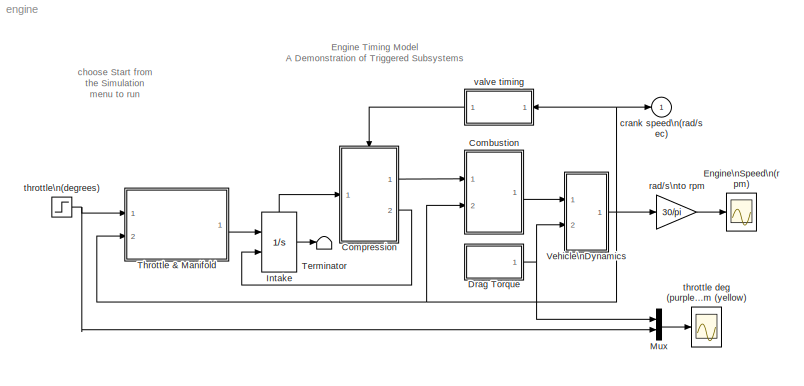
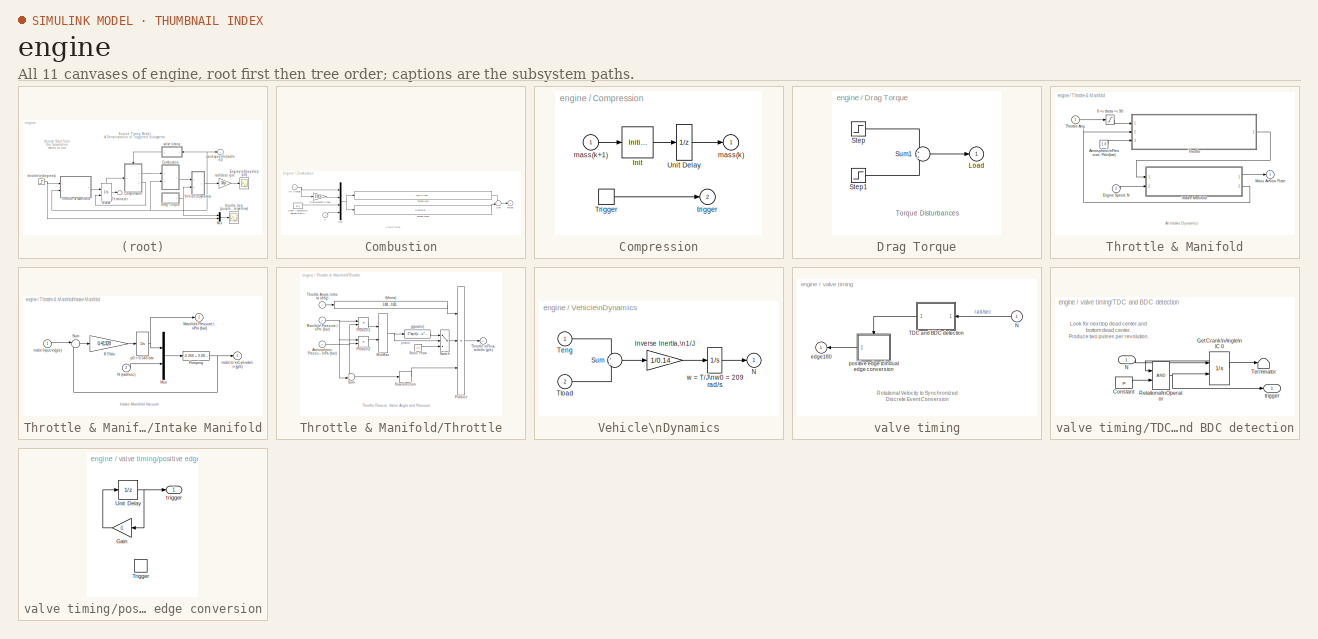
[diagram: thumbnail index - all 11 canvases of the model, root first then tree order]
MODEL engine
KIND model
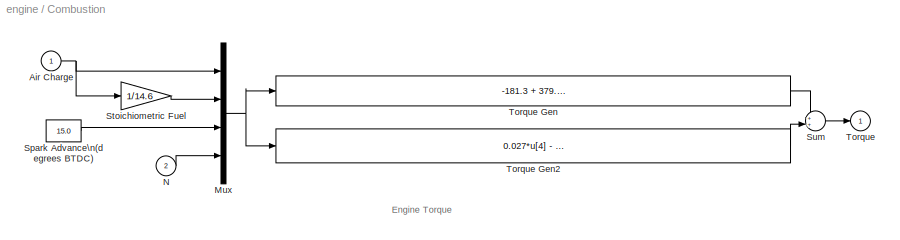
BLOCK [SubSystem] Combustion
  MinAlgLoopOccurrences = off
  Ports = [2, 1]
  PropExecContextAcrossSSBoundary = on
  RTWSystemCode = Auto
  TreatAsAtomicUnit = off
BLOCK [Inport] Combustion/Air Charge
  IconDisplay = Port number
  LatchInput = off
  Port = 1
BLOCK [Mux] Combustion/Mux
  DisplayOption = bar
  Ports = [4, 1]
BLOCK [Inport] Combustion/N
  IconDisplay = Port number
  LatchInput = off
  Port = 2
BLOCK [Constant] Combustion/Spark Advance\n(degrees BTDC)
  Value = 15.0
BLOCK [Gain] Combustion/Stoichiometric Fuel
  Gain = 1/14.6
BLOCK [Sum] Combustion/Sum
  IconShape = round
  Ports = [2, 1]
BLOCK [Outport] Combustion/Torque
  IconDisplay = Port number
  InitialOutput = 0
BLOCK [Fcn] Combustion/Torque Gen
  Expr = -181.3 + 379.36*u[1] + 21.91*u[1]/u[2] - (0.85*u[1]*u[1])/(u[2]*u[2]) + 0.26*u[3] - 0.0028*u[3]*u[3]
BLOCK [Fcn] Combustion/Torque Gen2
  Expr = 0.027*u[4] - 0.000107*u[4]*u[4] + 0.00048*u[4]*u[3] + 2.55*u[3]*u[1] - 0.05*u[3]*u[3]*u[1]
BLOCK [SubSystem] Compression
  MinAlgLoopOccurrences = off
  Ports = [1, 2, 0, 1]
  PropExecContextAcrossSSBoundary = on
  RTWSystemCode = Auto
  TreatAsAtomicUnit = on
BLOCK [InitialCondition] Compression/Init
  Value = 0.152
BLOCK [TriggerPort] Compression/Trigger
  Ports = [0, 1]
  ShowOutputPort = on
  TriggerType = either
BLOCK [UnitDelay] Compression/Unit Delay
  SampleTime = -1
  X0 = 0.152
BLOCK [Outport] Compression/mass(k)
  IconDisplay = Port number
  InitialOutput = 0.152
BLOCK [Inport] Compression/mass(k+1)
  IconDisplay = Port number
  LatchInput = off
  Port = 1
BLOCK [Outport] Compression/trigger
  IconDisplay = Port number
  InitialOutput = -1
  Port = 2
BLOCK [SubSystem] Drag Torque
  MinAlgLoopOccurrences = off
  Ports = [0, 1]
  PropExecContextAcrossSSBoundary = on
  RTWSystemCode = Auto
  TreatAsAtomicUnit = off
BLOCK [Outport] Drag Torque/Load
  IconDisplay = Port number
  InitialOutput = 0
BLOCK [Step] Drag Torque/Step
  After = 20
  Before = 25
  SampleTime = 0
  Time = 2
BLOCK [Step] Drag Torque/Step1
  After = 5
  SampleTime = 0
  Time = 8
BLOCK [Sum] Drag Torque/Sum1
  IconShape = round
  Ports = [2, 1]
BLOCK [Scope] Engine\nSpeed\n(rpm)
  DataFormat = Structure
  LimitDataPoints = off
  NumInputPorts = 1
  Ports = [1]
  SaveName = N
  SaveToWorkspace = on
  TickLabels = on
  YMax = 3500
  YMin = 1500
BLOCK [Integrator] Intake
  ExternalReset = either
  Ports = [2, 1, 0, 0, 1]
  ShowStatePort = on
BLOCK [Mux] Mux
  DisplayOption = bar
  Inputs = 2
  Ports = [2, 1]
BLOCK [Terminator] Terminator
BLOCK [SubSystem] Throttle & Manifold
  MinAlgLoopOccurrences = off
  Ports = [2, 1]
  PropExecContextAcrossSSBoundary = on
  RTWSystemCode = Auto
  TreatAsAtomicUnit = off
BLOCK [Saturate] Throttle & Manifold/0 <= theta <= 90
  LowerLimit = 0
  UpperLimit = 90
BLOCK [Constant] Throttle & Manifold/Atmospheric\nPressure, Pa\n(bar)
  Value = 1.0
BLOCK [Inport] Throttle & Manifold/Engine Speed, N
  IconDisplay = Port number
  LatchInput = off
  Port = 2
BLOCK [SubSystem] Throttle & Manifold/Intake Manifold
  MinAlgLoopOccurrences = off
  Ports = [2, 2]
  PropExecContextAcrossSSBoundary = on
  RTWSystemCode = Auto
  TreatAsAtomicUnit = off
BLOCK [Outport] Throttle & Manifold/Intake Manifold/Manifold Pressure,\nPm (bar)
  IconDisplay = Port number
  InitialOutput = 0
  Port = 2
BLOCK [Mux] Throttle & Manifold/Intake Manifold/Mux
  DisplayOption = bar
  Inputs = 2
  Ports = [2, 1]
BLOCK [Inport] Throttle & Manifold/Intake Manifold/N (rad//sec)
  IconDisplay = Port number
  LatchInput = off
  Port = 2
BLOCK [Fcn] Throttle & Manifold/Intake Manifold/Pumping
  Expr = -0.366 + 0.08979*u[1]*u[2] - 0.0337*u[2]*u[1]*u[1] + 0.0001*u[1]*u[2]*u[2]
BLOCK [Gain] Throttle & Manifold/Intake Manifold/RT//Vm
  Gain = 0.41328
BLOCK [Sum] Throttle & Manifold/Intake Manifold/Sum
  IconShape = round
  Inputs = |+-
  Ports = [2, 1]
BLOCK [Inport] Throttle & Manifold/Intake Manifold/mdot Input \n(g//s)
  IconDisplay = Port number
  LatchInput = off
  Port = 1
BLOCK [Outport] Throttle & Manifold/Intake Manifold/mdot to \nCylinder\n (g//s)
  IconDisplay = Port number
  InitialOutput = 0
BLOCK [Integrator] Throttle & Manifold/Intake Manifold/p0 = 0.543 bar
  InitialCondition = .543
  Ports = [1, 1]
BLOCK [Outport] Throttle & Manifold/Mass Airflow Rate
  IconDisplay = Port number
  InitialOutput = 0
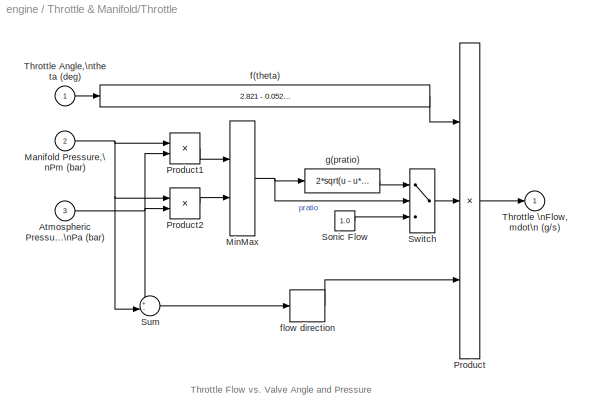
BLOCK [SubSystem] Throttle & Manifold/Throttle
  MinAlgLoopOccurrences = off
  Ports = [3, 1]
  PropExecContextAcrossSSBoundary = on
  RTWSystemCode = Auto
  TreatAsAtomicUnit = off
BLOCK [Inport] Throttle & Manifold/Throttle Ang.
  IconDisplay = Port number
  LatchInput = off
  Port = 1
BLOCK [Inport] Throttle & Manifold/Throttle/Atmospheric Pressure,\nPa (bar) 
  IconDisplay = Port number
  LatchInput = off
  Port = 3
BLOCK [Inport] Throttle & Manifold/Throttle/Manifold Pressure,\nPm (bar)
  IconDisplay = Port number
  LatchInput = off
  Port = 2
BLOCK [MinMax] Throttle & Manifold/Throttle/MinMax
  Function = min
  Inputs = 2
  Ports = [2, 1]
BLOCK [Product] Throttle & Manifold/Throttle/Product
  Inputs = 3
  Ports = [3, 1]
BLOCK [Product] Throttle & Manifold/Throttle/Product1
  Inputs = */
  Ports = [2, 1]
BLOCK [Product] Throttle & Manifold/Throttle/Product2
  Inputs = /*
  Ports = [2, 1]
BLOCK [Constant] Throttle & Manifold/Throttle/Sonic Flow 
  Value = 1.0
BLOCK [Sum] Throttle & Manifold/Throttle/Sum
  IconShape = round
  Inputs = +-|
  Ports = [2, 1]
BLOCK [Switch] Throttle & Manifold/Throttle/Switch
  Threshold = 0.5
BLOCK [Inport] Throttle & Manifold/Throttle/Throttle Angle,\ntheta (deg)
  IconDisplay = Port number
  LatchInput = off
  Port = 1
BLOCK [Outport] Throttle & Manifold/Throttle/Throttle \nFlow, mdot\n (g//s)
  IconDisplay = Port number
  InitialOutput = 0
BLOCK [Fcn] Throttle & Manifold/Throttle/f(theta)
  Expr = 2.821 - 0.05231*u + 0.10299*u*u - 0.00063*u*u*u
BLOCK [Signum] Throttle & Manifold/Throttle/flow direction
BLOCK [Fcn] Throttle & Manifold/Throttle/g(pratio)
  Expr = 2*sqrt(u - u*u)
BLOCK [SubSystem] Vehicle\nDynamics
  MinAlgLoopOccurrences = off
  Ports = [2, 1]
  PropExecContextAcrossSSBoundary = on
  RTWSystemCode = Auto
  TreatAsAtomicUnit = off
BLOCK [Gain] Vehicle\nDynamics/Inverse Inertia,\n1//J
  Gain = 1/0.14
BLOCK [Outport] Vehicle\nDynamics/N
  IconDisplay = Port number
  InitialOutput = 0
BLOCK [Sum] Vehicle\nDynamics/Sum
  IconShape = round
  Inputs = +-
  Ports = [2, 1]
BLOCK [Inport] Vehicle\nDynamics/Teng
  IconDisplay = Port number
  LatchInput = off
  Port = 1
BLOCK [Inport] Vehicle\nDynamics/Tload
  IconDisplay = Port number
  LatchInput = off
  Port = 2
BLOCK [Integrator] Vehicle\nDynamics/w = T//J\nw0 = 209 rad//s
  InitialCondition = 209.48
  Ports = [1, 1]
BLOCK [Outport] crank speed\n(rad//sec)
  IconDisplay = Port number
  InitialOutput = 0
BLOCK [Gain] rad//s\nto rpm
  Gain = 30/pi
BLOCK [Scope] throttle deg (purple)\nload torque Nm (yellow)
  DataFormat = Structure
  LimitDataPoints = off
  NumInputPorts = 1
  Ports = [1]
  SaveName = Tth
  SaveToWorkspace = on
  TickLabels = on
  YMax = 30
  YMin = 5
BLOCK [Step] throttle\n(degrees)
  After = 11.93
  Before = 8.973
  SampleTime = 0
  Time = 5
BLOCK [SubSystem] valve timing
  MinAlgLoopOccurrences = off
  Ports = [1, 1]
  PropExecContextAcrossSSBoundary = on
  RTWSystemCode = Auto
  TreatAsAtomicUnit = off
BLOCK [Inport] valve timing/N
  IconDisplay = Port number
  LatchInput = off
  Port = 1
BLOCK [SubSystem] valve timing/TDC and BDC detection
  MinAlgLoopOccurrences = off
  Ports = [1, 1]
  PropExecContextAcrossSSBoundary = on
  RTWSystemCode = Auto
  TreatAsAtomicUnit = off
BLOCK [Constant] valve timing/TDC and BDC detection/Constant
  Value = pi
BLOCK [Integrator] valve timing/TDC and BDC detection/Get Crank\nAngle\nIC 0
  ExternalReset = rising
  Ports = [2, 1, 0, 0, 1]
  ShowStatePort = on
BLOCK [Inport] valve timing/TDC and BDC detection/N
  IconDisplay = Port number
  LatchInput = off
  Port = 1
BLOCK [RelationalOperator] valve timing/TDC and BDC detection/Relational\nOperator
BLOCK [Terminator] valve timing/TDC and BDC detection/Terminator
BLOCK [Outport] valve timing/TDC and BDC detection/trigger
  IconDisplay = Port number
  InitialOutput = 0
BLOCK [Outport] valve timing/edge180
  IconDisplay = Port number
  InitialOutput = -1
BLOCK [SubSystem] valve timing/positive edge to\ndual edge conversion
  MinAlgLoopOccurrences = off
  Ports = [0, 1, 0, 1]
  PropExecContextAcrossSSBoundary = on
  RTWSystemCode = Auto
  TreatAsAtomicUnit = on
BLOCK [Gain] valve timing/positive edge to\ndual edge conversion/Gain
  Gain = -1
BLOCK [TriggerPort] valve timing/positive edge to\ndual edge conversion/Trigger
  Ports = []
BLOCK [UnitDelay] valve timing/positive edge to\ndual edge conversion/Unit Delay
  SampleTime = -1
  X0 = 1
BLOCK [Outport] valve timing/positive edge to\ndual edge conversion/trigger
  IconDisplay = Port number
  InitialOutput = -1
ANNOTATION (root): Engine Timing Model\nA Demonstration of Triggered Subsystems
ANNOTATION (root): choose Start from\nthe Simulation \nmenu to run
ANNOTATION Combustion: Engine Torque
ANNOTATION Drag Torque: Torque Disturbances
ANNOTATION Throttle & Manifold: Air Intake Dynamics
ANNOTATION Throttle & Manifold/Intake Manifold: Intake Manifold Vacuum
ANNOTATION Throttle & Manifold/Throttle: Throttle Flow vs. Valve Angle and Pressure
ANNOTATION valve timing: Rotational Velocity to Synchronized \nDiscrete Event Conversion
ANNOTATION valve timing/TDC and BDC detection: Look for next top dead center.and\nbottom dead center.\nProduce two pulses per revolution.
NET Combustion/Air Charge:1 -> Combustion/Mux:1, Combustion/Stoichiometric Fuel:1
NET Combustion/Mux:1 -> Combustion/Torque Gen2:1, Combustion/Torque Gen:1
LINE Combustion/N:1 -> Combustion/Mux:4
LINE Combustion/Spark Advance\n(degrees BTDC):1 -> Combustion/Mux:3
LINE Combustion/Stoichiometric Fuel:1 -> Combustion/Mux:2
LINE Combustion/Sum:1 -> Combustion/Torque:1
LINE Combustion/Torque Gen2:1 -> Combustion/Sum:2
LINE Combustion/Torque Gen:1 -> Combustion/Sum:1
LINE Combustion:1 -> Vehicle\nDynamics:1
LINE Compression/Init:1 -> Compression/Unit Delay:1
LINE Compression/Trigger:1 -> Compression/trigger:1
LINE Compression/Unit Delay:1 -> Compression/mass(k):1
LINE Compression/mass(k+1):1 -> Compression/Init:1
LINE Compression:1 -> Combustion:1
LINE Compression:2 -> Intake:2
LINE Drag Torque/Step1:1 -> Drag Torque/Sum1:2
LINE Drag Torque/Step:1 -> Drag Torque/Sum1:1
LINE Drag Torque/Sum1:1 -> Drag Torque/Load:1
NET Drag Torque:1 -> Mux:1, Vehicle\nDynamics:2
LINE Intake:1 -> Terminator:1
LINE Intake:state -> Compression:1
LINE Mux:1 -> throttle deg (purple)\nload torque Nm (yellow):1
LINE Throttle & Manifold/0 <= theta <= 90:1 -> Throttle & Manifold/Throttle:1
LINE Throttle & Manifold/Atmospheric\nPressure, Pa\n(bar):1 -> Throttle & Manifold/Throttle:3
LINE Throttle & Manifold/Engine Speed, N:1 -> Throttle & Manifold/Intake Manifold:2
LINE Throttle & Manifold/Intake Manifold/Mux:1 -> Throttle & Manifold/Intake Manifold/Pumping:1
LINE Throttle & Manifold/Intake Manifold/N (rad//sec):1 -> Throttle & Manifold/Intake Manifold/Mux:2
NET Throttle & Manifold/Intake Manifold/Pumping:1 -> Throttle & Manifold/Intake Manifold/Sum:2, Throttle & Manifold/Intake Manifold/mdot to \nCylinder\n (g//s):1
LINE Throttle & Manifold/Intake Manifold/RT//Vm:1 -> Throttle & Manifold/Intake Manifold/p0 = 0.543 bar:1
LINE Throttle & Manifold/Intake Manifold/Sum:1 -> Throttle & Manifold/Intake Manifold/RT//Vm:1
LINE Throttle & Manifold/Intake Manifold/mdot Input \n(g//s):1 -> Throttle & Manifold/Intake Manifold/Sum:1
NET Throttle & Manifold/Intake Manifold/p0 = 0.543 bar:1 -> Throttle & Manifold/Intake Manifold/Manifold Pressure,\nPm (bar):1, Throttle & Manifold/Intake Manifold/Mux:1
LINE Throttle & Manifold/Intake Manifold:1 -> Throttle & Manifold/Mass Airflow Rate:1
LINE Throttle & Manifold/Intake Manifold:2 -> Throttle & Manifold/Throttle:2
LINE Throttle & Manifold/Throttle Ang.:1 -> Throttle & Manifold/0 <= theta <= 90:1
NET Throttle & Manifold/Throttle/Atmospheric Pressure,\nPa (bar) :1 -> Throttle & Manifold/Throttle/Product1:2, Throttle & Manifold/Throttle/Product2:2, Throttle & Manifold/Throttle/Sum:1
NET Throttle & Manifold/Throttle/Manifold Pressure,\nPm (bar):1 -> Throttle & Manifold/Throttle/Product1:1, Throttle & Manifold/Throttle/Product2:1, Throttle & Manifold/Throttle/Sum:2
NET Throttle & Manifold/Throttle/MinMax:1 -> Throttle & Manifold/Throttle/Switch:2, Throttle & Manifold/Throttle/g(pratio):1
LINE Throttle & Manifold/Throttle/Product1:1 -> Throttle & Manifold/Throttle/MinMax:1
LINE Throttle & Manifold/Throttle/Product2:1 -> Throttle & Manifold/Throttle/MinMax:2
LINE Throttle & Manifold/Throttle/Product:1 -> Throttle & Manifold/Throttle/Throttle \nFlow, mdot\n (g//s):1
LINE Throttle & Manifold/Throttle/Sonic Flow :1 -> Throttle & Manifold/Throttle/Switch:3
LINE Throttle & Manifold/Throttle/Sum:1 -> Throttle & Manifold/Throttle/flow direction:1
LINE Throttle & Manifold/Throttle/Switch:1 -> Throttle & Manifold/Throttle/Product:2
LINE Throttle & Manifold/Throttle/Throttle Angle,\ntheta (deg):1 -> Throttle & Manifold/Throttle/f(theta):1
LINE Throttle & Manifold/Throttle/f(theta):1 -> Throttle & Manifold/Throttle/Product:1
LINE Throttle & Manifold/Throttle/flow direction:1 -> Throttle & Manifold/Throttle/Product:3
LINE Throttle & Manifold/Throttle/g(pratio):1 -> Throttle & Manifold/Throttle/Switch:1
LINE Throttle & Manifold/Throttle:1 -> Throttle & Manifold/Intake Manifold:1
LINE Throttle & Manifold:1 -> Intake:1
LINE Vehicle\nDynamics/Inverse Inertia,\n1//J:1 -> Vehicle\nDynamics/w = T//J\nw0 = 209 rad//s:1
LINE Vehicle\nDynamics/Sum:1 -> Vehicle\nDynamics/Inverse Inertia,\n1//J:1
LINE Vehicle\nDynamics/Teng:1 -> Vehicle\nDynamics/Sum:1
LINE Vehicle\nDynamics/Tload:1 -> Vehicle\nDynamics/Sum:2
LINE Vehicle\nDynamics/w = T//J\nw0 = 209 rad//s:1 -> Vehicle\nDynamics/N:1
NET Vehicle\nDynamics:1 -> Combustion:2, Throttle & Manifold:2, crank speed\n(rad//sec):1, rad//s\nto rpm:1, valve timing:1
LINE rad//s\nto rpm:1 -> Engine\nSpeed\n(rpm):1
NET throttle\n(degrees):1 -> Mux:2, Throttle & Manifold:1
LINE valve timing/N:1 -> valve timing/TDC and BDC detection:1
LINE valve timing/TDC and BDC detection/Constant:1 -> valve timing/TDC and BDC detection/Relational\nOperator:2
LINE valve timing/TDC and BDC detection/Get Crank\nAngle\nIC 0:1 -> valve timing/TDC and BDC detection/Terminator:1
LINE valve timing/TDC and BDC detection/Get Crank\nAngle\nIC 0:state -> valve timing/TDC and BDC detection/Relational\nOperator:1
LINE valve timing/TDC and BDC detection/N:1 -> valve timing/TDC and BDC detection/Get Crank\nAngle\nIC 0:1
NET valve timing/TDC and BDC detection/Relational\nOperator:1 -> valve timing/TDC and BDC detection/Get Crank\nAngle\nIC 0:2, valve timing/TDC and BDC detection/trigger:1
LINE valve timing/TDC and BDC detection:1 -> valve timing/positive edge to\ndual edge conversion:trigger
LINE valve timing/positive edge to\ndual edge conversion/Gain:1 -> valve timing/positive edge to\ndual edge conversion/Unit Delay:1
NET valve timing/positive edge to\ndual edge conversion/Unit Delay:1 -> valve timing/positive edge to\ndual edge conversion/Gain:1, valve timing/positive edge to\ndual edge conversion/trigger:1
LINE valve timing/positive edge to\ndual edge conversion:1 -> valve timing/edge180:1
LINE valve timing:1 -> Compression:trigger
note: NET lines group one-source signal fan-out (src -> all destinations, sorted); 1:1 wires keep LINE
